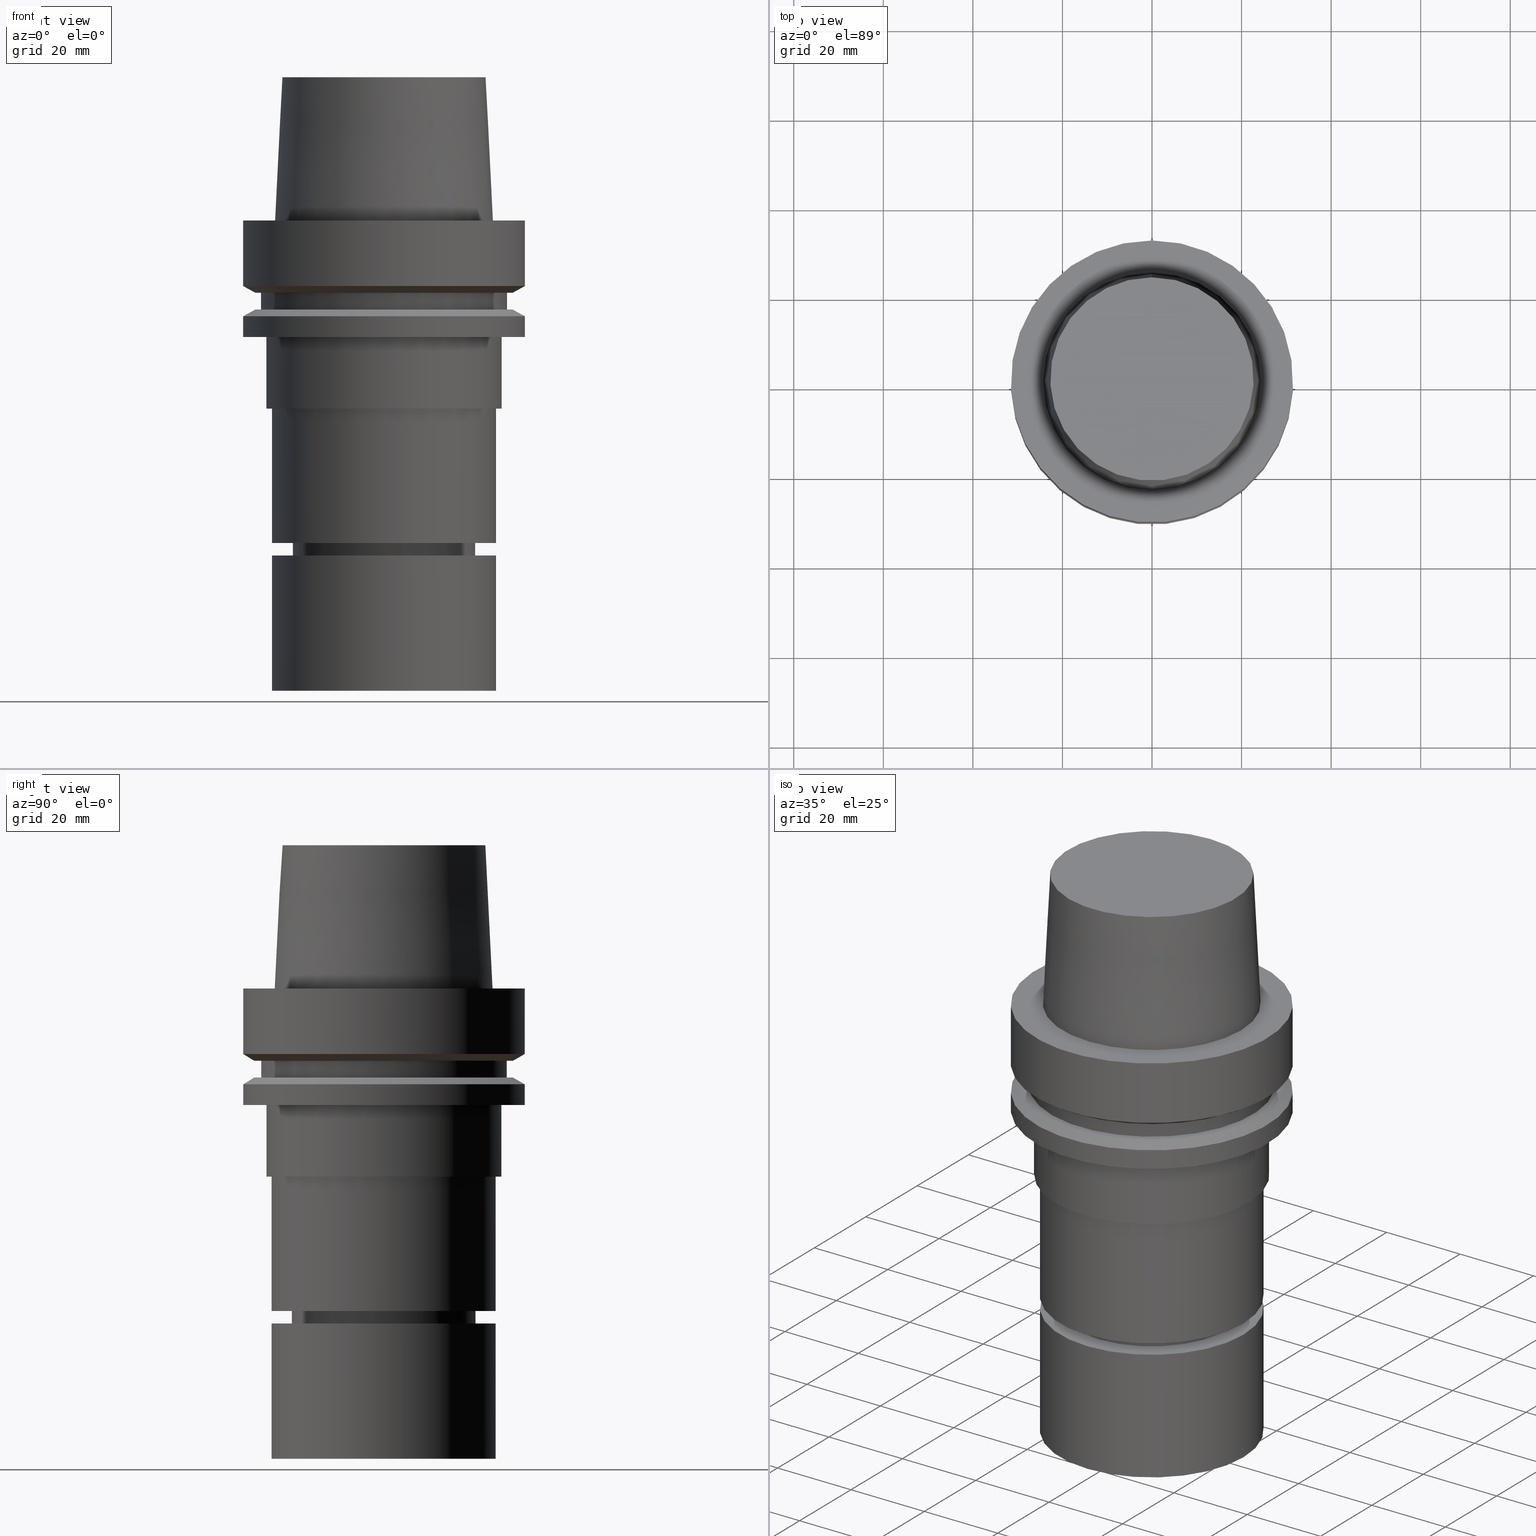
[diagram: canonical four-view strip — front | top / right | iso, engineering-drawing reading convention]
A machine part, canonical four-view strip (front | top / right | iso — engineering-drawing reading convention). The complete STEP part file that produces these views, byte-faithful:
ISO-10303-21;
HEADER;
FILE_DESCRIPTION((''),'1');
FILE_NAME('U:/Translate/02_3D_Field-HP\X2\FF71FF6FFF8CFF9F5916\X0\2013/02_Step_Field-HP\X2\FF71FF6FFF8CFF9F5916\X0\2013/HSK-A63-MEGAER32-105NL.stp','2016-06-22T00:36:56',(''),(''),'Spatial Interop R21 SP3','Kubotek KeyCreator 2011 V10.0.2 (22737)',' ');
FILE_SCHEMA(('automotive_design'));
ENDSEC;
DATA;
#1=MECHANICAL_DESIGN_GEOMETRIC_PRESENTATION_REPRESENTATION(' ',(#14,#15,#16,#17,#18,#19,#20,#21,#22,#23,#24,#25,#26,#27,#28,#29,#30,#31,#32,#33,#34,#35,#36,#37,#38,#39,#40,#41,#42,#43,#44,#45,#46,#47,#48,#49,#50,#51,#52,#53,#54,#55,#56,#57,#58,#59),#10);
#2=PRODUCT_DEFINITION_CONTEXT('',#60,'design');
#3=APPLICATION_PROTOCOL_DEFINITION('INTERNATIONAL STANDARD','automotive_design',1994,#60);
#4=PRODUCT_CATEGORY_RELATIONSHIP('NONE','NONE',#61,#62);
#5=SHAPE_DEFINITION_REPRESENTATION(#63,#64);
#6=PRODUCT_DEFINITION_CONTEXT('',#65,'design');
#7=APPLICATION_PROTOCOL_DEFINITION('INTERNATIONAL STANDARD','automotive_design',1994,#65);
#8=PRODUCT_CATEGORY_RELATIONSHIP('NONE','NONE',#66,#67);
#9=SHAPE_DEFINITION_REPRESENTATION(#68,#69);
#10= (GEOMETRIC_REPRESENTATION_CONTEXT(3)GLOBAL_UNCERTAINTY_ASSIGNED_CONTEXT((#72))GLOBAL_UNIT_ASSIGNED_CONTEXT((#74,#75,#76))REPRESENTATION_CONTEXT('NONE','WORKSPACE'));
#14=STYLED_ITEM('',(#78,#79),#80);
#15=STYLED_ITEM('',(#81),#82);
#16=STYLED_ITEM('',(#83),#84);
#17=STYLED_ITEM('',(#85),#86);
#18=STYLED_ITEM('',(#87,#88),#89);
#19=STYLED_ITEM('',(#90,#91),#92);
#20=STYLED_ITEM('',(#93,#94),#95);
#21=STYLED_ITEM('',(#96,#97),#98);
#22=STYLED_ITEM('',(#99),#100);
#23=STYLED_ITEM('',(#101),#102);
#24=STYLED_ITEM('',(#103),#104);
#25=STYLED_ITEM('',(#105),#106);
#26=STYLED_ITEM('',(#107),#108);
#27=STYLED_ITEM('',(#109),#110);
#28=STYLED_ITEM('',(#111,#112),#113);
#29=STYLED_ITEM('',(#114),#115);
#30=STYLED_ITEM('',(#116),#117);
#31=STYLED_ITEM('',(#118),#119);
#32=STYLED_ITEM('',(#120,#121),#122);
#33=STYLED_ITEM('',(#123),#124);
#34=STYLED_ITEM('',(#125,#126),#127);
#35=STYLED_ITEM('',(#128,#129),#130);
#36=STYLED_ITEM('',(#131),#132);
#37=STYLED_ITEM('',(#133,#134),#135);
#38=STYLED_ITEM('',(#136,#137),#138);
#39=STYLED_ITEM('',(#139,#140),#141);
#40=STYLED_ITEM('',(#142,#143),#144);
#41=STYLED_ITEM('',(#145,#146),#147);
#42=STYLED_ITEM('',(#148,#149),#150);
#43=STYLED_ITEM('',(#151,#152),#153);
#44=STYLED_ITEM('',(#154,#155),#156);
#45=STYLED_ITEM('',(#157,#158),#159);
#46=STYLED_ITEM('',(#160,#161),#162);
#47=STYLED_ITEM('',(#163),#164);
#48=STYLED_ITEM('',(#165,#166),#167);
#49=STYLED_ITEM('',(#168),#169);
#50=STYLED_ITEM('',(#170),#171);
#51=STYLED_ITEM('',(#172,#173),#174);
#52=STYLED_ITEM('',(#175,#176),#177);
#53=STYLED_ITEM('',(#178),#179);
#54=STYLED_ITEM('',(#180,#181),#182);
#55=STYLED_ITEM('',(#183),#184);
#56=STYLED_ITEM('',(#185),#186);
#57=STYLED_ITEM('',(#187),#188);
#58=STYLED_ITEM('',(#189,#190),#191);
#59=STYLED_ITEM('',(#192,#193),#194);
#60=APPLICATION_CONTEXT(' ');
#61=PRODUCT_CATEGORY('part','NONE');
#62=PRODUCT_RELATED_PRODUCT_CATEGORY('detail',' ',(#195));
#63=PRODUCT_DEFINITION_SHAPE('NONE','NONE',#196);
#64=ADVANCED_BREP_SHAPE_REPRESENTATION('Unnamed[1]',(#80,#197),#10);
#65=APPLICATION_CONTEXT(' ');
#66=PRODUCT_CATEGORY('part','NONE');
#67=PRODUCT_RELATED_PRODUCT_CATEGORY('detail',' ',(#198));
#68=PRODUCT_DEFINITION_SHAPE('NONE','NONE',#199);
#69=ADVANCED_BREP_SHAPE_REPRESENTATION('Unnamed[1]',(#89,#200),#10);
#72=UNCERTAINTY_MEASURE_WITH_UNIT(LENGTH_MEASURE(1.0E-006),#74,'','');
#74= (CONVERSION_BASED_UNIT('MILLIMETRE',#203)LENGTH_UNIT()NAMED_UNIT(#206));
#75= (NAMED_UNIT(#208)PLANE_ANGLE_UNIT()SI_UNIT($,.RADIAN.));
#76= (NAMED_UNIT(#208)SOLID_ANGLE_UNIT()SI_UNIT($,.STERADIAN.));
#78=PRESENTATION_STYLE_ASSIGNMENT((#214));
#79=PRESENTATION_STYLE_ASSIGNMENT((#215));
#80=MANIFOLD_SOLID_BREP('Unnamed[1]',#216);
#81=PRESENTATION_STYLE_ASSIGNMENT((#217));
#82=EDGE_CURVE('Unnamed[1]',#218,#218,#219,.T.);
#83=PRESENTATION_STYLE_ASSIGNMENT((#220));
#84=EDGE_CURVE('Unnamed[1]',#221,#221,#222,.T.);
#85=PRESENTATION_STYLE_ASSIGNMENT((#223));
#86=EDGE_CURVE('Unnamed[1]',#224,#224,#225,.T.);
#87=PRESENTATION_STYLE_ASSIGNMENT((#226));
#88=PRESENTATION_STYLE_ASSIGNMENT((#227));
#89=MANIFOLD_SOLID_BREP('Unnamed[1]',#228);
#90=PRESENTATION_STYLE_ASSIGNMENT((#229));
#91=PRESENTATION_STYLE_ASSIGNMENT((#230));
#92=ADVANCED_FACE('Unnamed[1]',(#231),#232,.T.);
#93=PRESENTATION_STYLE_ASSIGNMENT((#233));
#94=PRESENTATION_STYLE_ASSIGNMENT((#234));
#95=ADVANCED_FACE('Unnamed[1]',(#235),#236,.T.);
#96=PRESENTATION_STYLE_ASSIGNMENT((#237));
#97=PRESENTATION_STYLE_ASSIGNMENT((#238));
#98=ADVANCED_FACE('Unnamed[1]',(#239,#240),#241,.T.);
#99=PRESENTATION_STYLE_ASSIGNMENT((#242));
#100=EDGE_CURVE('Unnamed[1]',#243,#243,#244,.T.);
#101=PRESENTATION_STYLE_ASSIGNMENT((#245));
#102=EDGE_CURVE('Unnamed[1]',#246,#246,#247,.T.);
#103=PRESENTATION_STYLE_ASSIGNMENT((#248));
#104=EDGE_CURVE('Unnamed[1]',#249,#249,#250,.T.);
#105=PRESENTATION_STYLE_ASSIGNMENT((#251));
#106=EDGE_CURVE('Unnamed[1]',#252,#252,#253,.T.);
#107=PRESENTATION_STYLE_ASSIGNMENT((#254));
#108=EDGE_CURVE('Unnamed[1]',#255,#255,#256,.T.);
#109=PRESENTATION_STYLE_ASSIGNMENT((#257));
#110=EDGE_CURVE('Unnamed[1]',#258,#258,#259,.T.);
#111=PRESENTATION_STYLE_ASSIGNMENT((#260));
#112=PRESENTATION_STYLE_ASSIGNMENT((#261));
#113=ADVANCED_FACE('Unnamed[1]',(#262,#263),#264,.T.);
#114=PRESENTATION_STYLE_ASSIGNMENT((#265));
#115=EDGE_CURVE('Unnamed[1]',#266,#266,#267,.T.);
#116=PRESENTATION_STYLE_ASSIGNMENT((#268));
#117=EDGE_CURVE('Unnamed[1]',#269,#269,#270,.T.);
#118=PRESENTATION_STYLE_ASSIGNMENT((#271));
#119=EDGE_CURVE('Unnamed[1]',#272,#272,#273,.T.);
#120=PRESENTATION_STYLE_ASSIGNMENT((#274));
#121=PRESENTATION_STYLE_ASSIGNMENT((#275));
#122=ADVANCED_FACE('Unnamed[1]',(#276,#277),#278,.T.);
#123=PRESENTATION_STYLE_ASSIGNMENT((#279));
#124=EDGE_CURVE('Unnamed[1]',#280,#280,#281,.T.);
#125=PRESENTATION_STYLE_ASSIGNMENT((#282));
#126=PRESENTATION_STYLE_ASSIGNMENT((#283));
#127=ADVANCED_FACE('Unnamed[1]',(#284,#285),#286,.T.);
#128=PRESENTATION_STYLE_ASSIGNMENT((#287));
#129=PRESENTATION_STYLE_ASSIGNMENT((#288));
#130=ADVANCED_FACE('Unnamed[1]',(#289,#290),#291,.T.);
#131=PRESENTATION_STYLE_ASSIGNMENT((#292));
#132=EDGE_CURVE('Unnamed[1]',#293,#293,#294,.T.);
#133=PRESENTATION_STYLE_ASSIGNMENT((#295));
#134=PRESENTATION_STYLE_ASSIGNMENT((#296));
#135=ADVANCED_FACE('Unnamed[1]',(#297,#298),#299,.T.);
#136=PRESENTATION_STYLE_ASSIGNMENT((#300));
#137=PRESENTATION_STYLE_ASSIGNMENT((#301));
#138=ADVANCED_FACE('Unnamed[1]',(#302),#303,.T.);
#139=PRESENTATION_STYLE_ASSIGNMENT((#304));
#140=PRESENTATION_STYLE_ASSIGNMENT((#305));
#141=ADVANCED_FACE('Unnamed[1]',(#306,#307),#308,.T.);
#142=PRESENTATION_STYLE_ASSIGNMENT((#309));
#143=PRESENTATION_STYLE_ASSIGNMENT((#310));
#144=ADVANCED_FACE('Unnamed[1]',(#311,#312),#313,.T.);
#145=PRESENTATION_STYLE_ASSIGNMENT((#314));
#146=PRESENTATION_STYLE_ASSIGNMENT((#315));
#147=ADVANCED_FACE('Unnamed[1]',(#316,#317),#318,.T.);
#148=PRESENTATION_STYLE_ASSIGNMENT((#319));
#149=PRESENTATION_STYLE_ASSIGNMENT((#320));
#150=ADVANCED_FACE('Unnamed[1]',(#321,#322),#323,.T.);
#151=PRESENTATION_STYLE_ASSIGNMENT((#324));
#152=PRESENTATION_STYLE_ASSIGNMENT((#325));
#153=ADVANCED_FACE('Unnamed[1]',(#326,#327),#328,.T.);
#154=PRESENTATION_STYLE_ASSIGNMENT((#329));
#155=PRESENTATION_STYLE_ASSIGNMENT((#330));
#156=ADVANCED_FACE('Unnamed[1]',(#331,#332),#333,.T.);
#157=PRESENTATION_STYLE_ASSIGNMENT((#334));
#158=PRESENTATION_STYLE_ASSIGNMENT((#335));
#159=ADVANCED_FACE('Unnamed[1]',(#336,#337),#338,.T.);
#160=PRESENTATION_STYLE_ASSIGNMENT((#339));
#161=PRESENTATION_STYLE_ASSIGNMENT((#340));
#162=ADVANCED_FACE('Unnamed[1]',(#341),#342,.T.);
#163=PRESENTATION_STYLE_ASSIGNMENT((#343));
#164=EDGE_CURVE('Unnamed[1]',#344,#344,#345,.T.);
#165=PRESENTATION_STYLE_ASSIGNMENT((#346));
#166=PRESENTATION_STYLE_ASSIGNMENT((#347));
#167=ADVANCED_FACE('Unnamed[1]',(#348,#349),#350,.T.);
#168=PRESENTATION_STYLE_ASSIGNMENT((#351));
#169=EDGE_CURVE('Unnamed[1]',#352,#352,#353,.T.);
#170=PRESENTATION_STYLE_ASSIGNMENT((#354));
#171=EDGE_CURVE('Unnamed[1]',#355,#355,#356,.T.);
#172=PRESENTATION_STYLE_ASSIGNMENT((#357));
#173=PRESENTATION_STYLE_ASSIGNMENT((#358));
#174=ADVANCED_FACE('Unnamed[1]',(#359,#360),#361,.T.);
#175=PRESENTATION_STYLE_ASSIGNMENT((#362));
#176=PRESENTATION_STYLE_ASSIGNMENT((#363));
#177=ADVANCED_FACE('Unnamed[1]',(#364,#365),#366,.T.);
#178=PRESENTATION_STYLE_ASSIGNMENT((#367));
#179=EDGE_CURVE('Unnamed[1]',#368,#368,#369,.T.);
#180=PRESENTATION_STYLE_ASSIGNMENT((#370));
#181=PRESENTATION_STYLE_ASSIGNMENT((#371));
#182=ADVANCED_FACE('Unnamed[1]',(#372,#373),#374,.T.);
#183=PRESENTATION_STYLE_ASSIGNMENT((#375));
#184=EDGE_CURVE('Unnamed[1]',#376,#376,#377,.T.);
#185=PRESENTATION_STYLE_ASSIGNMENT((#378));
#186=EDGE_CURVE('Unnamed[1]',#379,#379,#380,.T.);
#187=PRESENTATION_STYLE_ASSIGNMENT((#381));
#188=EDGE_CURVE('Unnamed[1]',#382,#382,#383,.T.);
#189=PRESENTATION_STYLE_ASSIGNMENT((#384));
#190=PRESENTATION_STYLE_ASSIGNMENT((#385));
#191=ADVANCED_FACE('Unnamed[1]',(#386,#387),#388,.T.);
#192=PRESENTATION_STYLE_ASSIGNMENT((#389));
#193=PRESENTATION_STYLE_ASSIGNMENT((#390));
#194=ADVANCED_FACE('Unnamed[1]',(#391,#392),#393,.T.);
#195=PRODUCT('Unnamed[1]','Unnamed[1]','PART-Unnamed[1]-DESC',(#394));
#196=PRODUCT_DEFINITION('NONE','NONE',#395,#2);
#197=AXIS2_PLACEMENT_3D('',#396,#397,#398);
#198=PRODUCT('Unnamed[1]','Unnamed[1]','PART-Unnamed[1]-DESC',(#399));
#199=PRODUCT_DEFINITION('NONE','NONE',#400,#6);
#200=AXIS2_PLACEMENT_3D('',#401,#402,#403);
#203=LENGTH_MEASURE_WITH_UNIT(LENGTH_MEASURE(1.0),#404);
#206=DIMENSIONAL_EXPONENTS(1.0,0.0,0.0,0.0,0.0,0.0,0.0);
#208=DIMENSIONAL_EXPONENTS(0.0,0.0,0.0,0.0,0.0,0.0,0.0);
#214=SURFACE_STYLE_USAGE(.BOTH.,#405);
#215=CURVE_STYLE('',#406,POSITIVE_LENGTH_MEASURE(1000.0),#407);
#216=CLOSED_SHELL('',(#138,#141,#191,#159,#122,#98,#144,#135,#174,#167,#153,#147,#130,#150,#194,#182,#177,#113,#156,#162));
#217=CURVE_STYLE('',#408,POSITIVE_LENGTH_MEASURE(1000.0),#409);
#218=VERTEX_POINT('',#410);
#219=CIRCLE('',#411,18.8999999999997);
#220=CURVE_STYLE('',#412,POSITIVE_LENGTH_MEASURE(1000.0),#413);
#221=VERTEX_POINT('',#414);
#222=CIRCLE('',#415,20.0);
#223=CURVE_STYLE('',#416,POSITIVE_LENGTH_MEASURE(1000.0),#417);
#224=VERTEX_POINT('',#418);
#225=CIRCLE('',#419,25.0);
#226=SURFACE_STYLE_USAGE(.BOTH.,#420);
#227=CURVE_STYLE('',#421,POSITIVE_LENGTH_MEASURE(1000.0),#422);
#228=CLOSED_SHELL('',(#95,#92,#127));
#229=SURFACE_STYLE_USAGE(.BOTH.,#423);
#230=CURVE_STYLE('',#424,POSITIVE_LENGTH_MEASURE(1000.0),#425);
#231=FACE_OUTER_BOUND('',#426,.T.);
#232=PLANE('',#427);
#233=SURFACE_STYLE_USAGE(.BOTH.,#428);
#234=CURVE_STYLE('',#429,POSITIVE_LENGTH_MEASURE(1000.0),#430);
#235=FACE_OUTER_BOUND('',#431,.T.);
#236=PLANE('',#432);
#237=SURFACE_STYLE_USAGE(.BOTH.,#433);
#238=CURVE_STYLE('',#434,POSITIVE_LENGTH_MEASURE(1000.0),#435);
#239=FACE_OUTER_BOUND('',#436,.T.);
#240=FACE_BOUND('',#437,.T.);
#241=PLANE('',#438);
#242=CURVE_STYLE('',#439,POSITIVE_LENGTH_MEASURE(1000.0),#440);
#243=VERTEX_POINT('',#441);
#244=CIRCLE('',#442,22.715);
#245=CURVE_STYLE('',#443,POSITIVE_LENGTH_MEASURE(1000.0),#444);
#246=VERTEX_POINT('',#445);
#247=CIRCLE('',#446,27.4999999999989);
#248=CURVE_STYLE('',#447,POSITIVE_LENGTH_MEASURE(1000.0),#448);
#249=VERTEX_POINT('',#449);
#250=CIRCLE('',#450,26.3);
#251=CURVE_STYLE('',#451,POSITIVE_LENGTH_MEASURE(1000.0),#452);
#252=VERTEX_POINT('',#453);
#253=CIRCLE('',#454,31.5000000000001);
#254=CURVE_STYLE('',#455,POSITIVE_LENGTH_MEASURE(1000.0),#456);
#255=VERTEX_POINT('',#457);
#256=CIRCLE('',#458,28.8975952641919);
#257=CURVE_STYLE('',#459,POSITIVE_LENGTH_MEASURE(1000.0),#460);
#258=VERTEX_POINT('',#461);
#259=CIRCLE('',#462,27.5);
#260=SURFACE_STYLE_USAGE(.BOTH.,#463);
#261=CURVE_STYLE('',#464,POSITIVE_LENGTH_MEASURE(1000.0),#465);
#262=FACE_BOUND('',#466,.T.);
#263=FACE_OUTER_BOUND('',#467,.T.);
#264=PLANE('',#468);
#265=CURVE_STYLE('',#469,POSITIVE_LENGTH_MEASURE(1000.0),#470);
#266=VERTEX_POINT('',#471);
#267=CIRCLE('',#472,24.315);
#268=CURVE_STYLE('',#473,POSITIVE_LENGTH_MEASURE(1000.0),#474);
#269=VERTEX_POINT('',#475);
#270=CIRCLE('',#476,31.4999999999998);
#271=CURVE_STYLE('',#477,POSITIVE_LENGTH_MEASURE(1000.0),#478);
#272=VERTEX_POINT('',#479);
#273=CIRCLE('',#480,28.8975952641919);
#274=SURFACE_STYLE_USAGE(.BOTH.,#481);
#275=CURVE_STYLE('',#482,POSITIVE_LENGTH_MEASURE(1000.0),#483);
#276=FACE_BOUND('',#484,.T.);
#277=FACE_BOUND('',#485,.T.);
#278=CYLINDRICAL_SURFACE('',#486,20.4999999999961);
#279=CURVE_STYLE('',#487,POSITIVE_LENGTH_MEASURE(1000.0),#488);
#280=VERTEX_POINT('',#489);
#281=CIRCLE('',#490,25.0);
#282=SURFACE_STYLE_USAGE(.BOTH.,#491);
#283=CURVE_STYLE('',#492,POSITIVE_LENGTH_MEASURE(1000.0),#493);
#284=FACE_BOUND('',#494,.T.);
#285=FACE_BOUND('',#495,.T.);
#286=CYLINDRICAL_SURFACE('',#496,25.0);
#287=SURFACE_STYLE_USAGE(.BOTH.,#497);
#288=CURVE_STYLE('',#498,POSITIVE_LENGTH_MEASURE(1000.0),#499);
#289=FACE_BOUND('',#500,.T.);
#290=FACE_OUTER_BOUND('',#501,.T.);
#291=PLANE('',#502);
#292=CURVE_STYLE('',#503,POSITIVE_LENGTH_MEASURE(1000.0),#504);
#293=VERTEX_POINT('',#505);
#294=CIRCLE('',#506,25.0);
#295=SURFACE_STYLE_USAGE(.BOTH.,#507);
#296=CURVE_STYLE('',#508,POSITIVE_LENGTH_MEASURE(1000.0),#509);
#297=FACE_OUTER_BOUND('',#510,.T.);
#298=FACE_BOUND('',#511,.T.);
#299=PLANE('',#512);
#300=SURFACE_STYLE_USAGE(.BOTH.,#513);
#301=CURVE_STYLE('',#514,POSITIVE_LENGTH_MEASURE(1000.0),#515);
#302=FACE_OUTER_BOUND('',#516,.T.);
#303=PLANE('',#517);
#304=SURFACE_STYLE_USAGE(.BOTH.,#518);
#305=CURVE_STYLE('',#519,POSITIVE_LENGTH_MEASURE(1000.0),#520);
#306=FACE_BOUND('',#521,.T.);
#307=FACE_BOUND('',#522,.T.);
#308=CONICAL_SURFACE('',#523,19.4499999999999,0.523598775598216);
#309=SURFACE_STYLE_USAGE(.BOTH.,#524);
#310=CURVE_STYLE('',#525,POSITIVE_LENGTH_MEASURE(1000.0),#526);
#311=FACE_BOUND('',#527,.T.);
#312=FACE_BOUND('',#528,.T.);
#313=CYLINDRICAL_SURFACE('',#529,25.0);
#314=SURFACE_STYLE_USAGE(.BOTH.,#530);
#315=CURVE_STYLE('',#531,POSITIVE_LENGTH_MEASURE(1000.0),#532);
#316=FACE_BOUND('',#533,.T.);
#317=FACE_BOUND('',#534,.T.);
#318=CONICAL_SURFACE('',#535,30.1987976320959,1.04719755119657);
#319=SURFACE_STYLE_USAGE(.BOTH.,#536);
#320=CURVE_STYLE('',#537,POSITIVE_LENGTH_MEASURE(1000.0),#538);
#321=FACE_BOUND('',#539,.T.);
#322=FACE_BOUND('',#540,.T.);
#323=CYLINDRICAL_SURFACE('',#541,27.4999999999994);
#324=SURFACE_STYLE_USAGE(.BOTH.,#542);
#325=CURVE_STYLE('',#543,POSITIVE_LENGTH_MEASURE(1000.0),#544);
#326=FACE_BOUND('',#545,.T.);
#327=FACE_BOUND('',#546,.T.);
#328=CYLINDRICAL_SURFACE('',#547,31.4999999999999);
#329=SURFACE_STYLE_USAGE(.BOTH.,#548);
#330=CURVE_STYLE('',#549,POSITIVE_LENGTH_MEASURE(1000.0),#550);
#331=FACE_BOUND('',#551,.T.);
#332=FACE_BOUND('',#552,.T.);
#333=CONICAL_SURFACE('',#553,23.515,0.0499583957219433);
#334=SURFACE_STYLE_USAGE(.BOTH.,#554);
#335=CURVE_STYLE('',#555,POSITIVE_LENGTH_MEASURE(1000.0),#556);
#336=FACE_BOUND('',#557,.T.);
#337=FACE_BOUND('',#558,.T.);
#338=CONICAL_SURFACE('',#559,20.2500000000006,0.766162649696511);
#339=SURFACE_STYLE_USAGE(.BOTH.,#560);
#340=CURVE_STYLE('',#561,POSITIVE_LENGTH_MEASURE(1000.0),#562);
#341=FACE_OUTER_BOUND('',#563,.T.);
#342=PLANE('',#564);
#343=CURVE_STYLE('',#565,POSITIVE_LENGTH_MEASURE(1000.0),#566);
#344=VERTEX_POINT('',#567);
#345=CIRCLE('',#568,31.5);
#346=SURFACE_STYLE_USAGE(.BOTH.,#569);
#347=CURVE_STYLE('',#570,POSITIVE_LENGTH_MEASURE(1000.0),#571);
#348=FACE_OUTER_BOUND('',#572,.T.);
#349=FACE_BOUND('',#573,.T.);
#350=PLANE('',#574);
#351=CURVE_STYLE('',#575,POSITIVE_LENGTH_MEASURE(1000.0),#576);
#352=VERTEX_POINT('',#577);
#353=CIRCLE('',#578,26.3);
#354=CURVE_STYLE('',#579,POSITIVE_LENGTH_MEASURE(1000.0),#580);
#355=VERTEX_POINT('',#581);
#356=CIRCLE('',#582,20.4999999999911);
#357=SURFACE_STYLE_USAGE(.BOTH.,#583);
#358=CURVE_STYLE('',#584,POSITIVE_LENGTH_MEASURE(1000.0),#585);
#359=FACE_BOUND('',#586,.T.);
#360=FACE_BOUND('',#587,.T.);
#361=CYLINDRICAL_SURFACE('',#588,26.3);
#362=SURFACE_STYLE_USAGE(.BOTH.,#589);
#363=CURVE_STYLE('',#590,POSITIVE_LENGTH_MEASURE(1000.0),#591);
#364=FACE_BOUND('',#592,.T.);
#365=FACE_BOUND('',#593,.T.);
#366=CYLINDRICAL_SURFACE('',#594,31.5);
#367=CURVE_STYLE('',#595,POSITIVE_LENGTH_MEASURE(1000.0),#596);
#368=VERTEX_POINT('',#597);
#369=CIRCLE('',#598,20.5000000000012);
#370=SURFACE_STYLE_USAGE(.BOTH.,#599);
#371=CURVE_STYLE('',#600,POSITIVE_LENGTH_MEASURE(1000.0),#601);
#372=FACE_BOUND('',#602,.T.);
#373=FACE_BOUND('',#603,.T.);
#374=CONICAL_SURFACE('',#604,30.1987976320959,1.04719755119657);
#375=CURVE_STYLE('',#605,POSITIVE_LENGTH_MEASURE(1000.0),#606);
#376=VERTEX_POINT('',#607);
#377=CIRCLE('',#608,25.0);
#378=CURVE_STYLE('',#609,POSITIVE_LENGTH_MEASURE(1000.0),#610);
#379=VERTEX_POINT('',#611);
#380=CIRCLE('',#612,20.0000000000001);
#381=CURVE_STYLE('',#613,POSITIVE_LENGTH_MEASURE(1000.0),#614);
#382=VERTEX_POINT('',#615);
#383=CIRCLE('',#616,31.5);
#384=SURFACE_STYLE_USAGE(.BOTH.,#617);
#385=CURVE_STYLE('',#618,POSITIVE_LENGTH_MEASURE(1000.0),#619);
#386=FACE_BOUND('',#620,.T.);
#387=FACE_BOUND('',#621,.T.);
#388=CYLINDRICAL_SURFACE('',#622,20.0);
#389=SURFACE_STYLE_USAGE(.BOTH.,#623);
#390=CURVE_STYLE('',#624,POSITIVE_LENGTH_MEASURE(1000.0),#625);
#391=FACE_OUTER_BOUND('',#626,.T.);
#392=FACE_BOUND('',#627,.T.);
#393=PLANE('',#628);
#394=PRODUCT_CONTEXT('',#60,'mechanical');
#395=PRODUCT_DEFINITION_FORMATION_WITH_SPECIFIED_SOURCE(' ','NONE',#195,.NOT_KNOWN.);
#396=CARTESIAN_POINT('',(0.0,0.0,0.0));
#397=DIRECTION('',(0.0,0.0,1.0));
#398=DIRECTION('',(1.0,0.0,0.0));
#399=PRODUCT_CONTEXT('',#65,'mechanical');
#400=PRODUCT_DEFINITION_FORMATION_WITH_SPECIFIED_SOURCE(' ','NONE',#198,.NOT_KNOWN.);
#401=CARTESIAN_POINT('',(0.0,0.0,0.0));
#402=DIRECTION('',(0.0,0.0,1.0));
#403=DIRECTION('',(1.0,0.0,0.0));
#404= (NAMED_UNIT(#206)LENGTH_UNIT()SI_UNIT(.MILLI.,.METRE.));
#405=SURFACE_SIDE_STYLE('',(#630));
#406=DRAUGHTING_PRE_DEFINED_CURVE_FONT('continuous');
#407=COLOUR_RGB('',0.0,1.0,0.0);
#408=DRAUGHTING_PRE_DEFINED_CURVE_FONT('continuous');
#409=COLOUR_RGB('',0.0,1.0,0.0);
#410=CARTESIAN_POINT('',(5.75583995599257E-015,18.8999999999997,-94.0000000000001));
#411=AXIS2_PLACEMENT_3D('',#631,#632,#633);
#412=DRAUGHTING_PRE_DEFINED_CURVE_FONT('continuous');
#413=COLOUR_RGB('',0.0,1.0,0.0);
#414=CARTESIAN_POINT('',(4.82088933817907E-015,20.0,-78.73109767707));
#415=AXIS2_PLACEMENT_3D('',#634,#635,#636);
#416=DRAUGHTING_PRE_DEFINED_CURVE_FONT('continuous');
#417=COLOUR_RGB('',0.0,1.0,0.0);
#418=CARTESIAN_POINT('',(6.4293956955236E-015,25.0,-105.0));
#419=AXIS2_PLACEMENT_3D('',#637,#638,#639);
#420=SURFACE_SIDE_STYLE('',(#640));
#421=DRAUGHTING_PRE_DEFINED_CURVE_FONT('continuous');
#422=COLOUR_RGB('',0.0,1.0,0.0);
#423=SURFACE_SIDE_STYLE('',(#641));
#424=DRAUGHTING_PRE_DEFINED_CURVE_FONT('continuous');
#425=COLOUR_RGB('',0.0,1.0,0.0);
#426=EDGE_LOOP('',(#642));
#427=AXIS2_PLACEMENT_3D('',#643,#644,#645);
#428=SURFACE_SIDE_STYLE('',(#646));
#429=DRAUGHTING_PRE_DEFINED_CURVE_FONT('continuous');
#430=COLOUR_RGB('',0.0,1.0,0.0);
#431=EDGE_LOOP('',(#647));
#432=AXIS2_PLACEMENT_3D('',#648,#649,#650);
#433=SURFACE_SIDE_STYLE('',(#651));
#434=DRAUGHTING_PRE_DEFINED_CURVE_FONT('continuous');
#435=COLOUR_RGB('',0.0,1.0,0.0);
#436=EDGE_LOOP('',(#652));
#437=EDGE_LOOP('',(#653));
#438=AXIS2_PLACEMENT_3D('',#654,#655,#656);
#439=DRAUGHTING_PRE_DEFINED_CURVE_FONT('continuous');
#440=COLOUR_RGB('',0.0,1.0,0.0);
#441=CARTESIAN_POINT('',(-1.95943487863576E-015,22.715,32.0));
#442=AXIS2_PLACEMENT_3D('',#657,#658,#659);
#443=DRAUGHTING_PRE_DEFINED_CURVE_FONT('continuous');
#444=COLOUR_RGB('',0.0,1.0,0.0);
#445=CARTESIAN_POINT('',(1.21699275665276E-015,27.4999999999989,-19.8750000000013));
#446=AXIS2_PLACEMENT_3D('',#660,#661,#662);
#447=DRAUGHTING_PRE_DEFINED_CURVE_FONT('continuous');
#448=COLOUR_RGB('',0.0,1.0,0.0);
#449=CARTESIAN_POINT('',(1.59204083889154E-015,26.3,-25.9999999999997));
#450=AXIS2_PLACEMENT_3D('',#663,#664,#665);
#451=DRAUGHTING_PRE_DEFINED_CURVE_FONT('continuous');
#452=COLOUR_RGB('',0.0,1.0,0.0);
#453=CARTESIAN_POINT('',(-3.88267476788467E-031,31.5000000000001,3.85763741731417E-015));
#454=AXIS2_PLACEMENT_3D('',#666,#667,#668);
#455=DRAUGHTING_PRE_DEFINED_CURVE_FONT('continuous');
#456=COLOUR_RGB('',0.0,1.0,0.0);
#457=CARTESIAN_POINT('',(1.21699275665268E-015,28.8975952641919,-19.875));
#458=AXIS2_PLACEMENT_3D('',#669,#670,#671);
#459=DRAUGHTING_PRE_DEFINED_CURVE_FONT('continuous');
#460=COLOUR_RGB('',0.0,1.0,0.0);
#461=CARTESIAN_POINT('',(9.87371481812537E-016,27.5,-16.1249999999997));
#462=AXIS2_PLACEMENT_3D('',#672,#673,#674);
#463=SURFACE_SIDE_STYLE('',(#675));
#464=DRAUGHTING_PRE_DEFINED_CURVE_FONT('continuous');
#465=COLOUR_RGB('',0.0,1.0,0.0);
#466=EDGE_LOOP('',(#676));
#467=EDGE_LOOP('',(#677));
#468=AXIS2_PLACEMENT_3D('',#678,#679,#680);
#469=DRAUGHTING_PRE_DEFINED_CURVE_FONT('continuous');
#470=COLOUR_RGB('',0.0,1.0,0.0);
#471=CARTESIAN_POINT('',(-2.99705514225764E-031,24.315,2.97772869212679E-015));
#472=AXIS2_PLACEMENT_3D('',#681,#682,#683);
#473=DRAUGHTING_PRE_DEFINED_CURVE_FONT('continuous');
#474=COLOUR_RGB('',0.0,1.0,0.0);
#475=CARTESIAN_POINT('',(1.59204083889155E-015,31.4999999999998,-25.9999999999999));
#476=AXIS2_PLACEMENT_3D('',#684,#685,#686);
#477=DRAUGHTING_PRE_DEFINED_CURVE_FONT('continuous');
#478=COLOUR_RGB('',0.0,1.0,0.0);
#479=CARTESIAN_POINT('',(9.87371481812551E-016,28.8975952641919,-16.125));
#480=AXIS2_PLACEMENT_3D('',#687,#688,#689);
#481=SURFACE_SIDE_STYLE('',(#690));
#482=DRAUGHTING_PRE_DEFINED_CURVE_FONT('continuous');
#483=COLOUR_RGB('',0.0,1.0,0.0);
#484=EDGE_LOOP('',(#691));
#485=EDGE_LOOP('',(#692));
#486=AXIS2_PLACEMENT_3D('',#693,#694,#695);
#487=DRAUGHTING_PRE_DEFINED_CURVE_FONT('continuous');
#488=COLOUR_RGB('',0.0,1.0,0.0);
#489=CARTESIAN_POINT('',(2.57175827820944E-015,25.0,-42.0));
#490=AXIS2_PLACEMENT_3D('',#696,#697,#698);
#491=SURFACE_SIDE_STYLE('',(#699));
#492=DRAUGHTING_PRE_DEFINED_CURVE_FONT('continuous');
#493=COLOUR_RGB('',0.0,1.0,0.0);
#494=EDGE_LOOP('',(#700));
#495=EDGE_LOOP('',(#701));
#496=AXIS2_PLACEMENT_3D('',#702,#703,#704);
#497=SURFACE_SIDE_STYLE('',(#705));
#498=DRAUGHTING_PRE_DEFINED_CURVE_FONT('continuous');
#499=COLOUR_RGB('',0.0,1.0,0.0);
#500=EDGE_LOOP('',(#706));
#501=EDGE_LOOP('',(#707));
#502=AXIS2_PLACEMENT_3D('',#708,#709,#710);
#503=DRAUGHTING_PRE_DEFINED_CURVE_FONT('continuous');
#504=COLOUR_RGB('',0.0,1.0,0.0);
#505=CARTESIAN_POINT('',(4.5801790288111E-015,25.0,-74.8));
#506=AXIS2_PLACEMENT_3D('',#711,#712,#713);
#507=SURFACE_SIDE_STYLE('',(#714));
#508=DRAUGHTING_PRE_DEFINED_CURVE_FONT('continuous');
#509=COLOUR_RGB('',0.0,1.0,0.0);
#510=EDGE_LOOP('',(#715));
#511=EDGE_LOOP('',(#716));
#512=AXIS2_PLACEMENT_3D('',#717,#718,#719);
#513=SURFACE_SIDE_STYLE('',(#720));
#514=DRAUGHTING_PRE_DEFINED_CURVE_FONT('continuous');
#515=COLOUR_RGB('',0.0,1.0,0.0);
#516=EDGE_LOOP('',(#721));
#517=AXIS2_PLACEMENT_3D('',#722,#723,#724);
#518=SURFACE_SIDE_STYLE('',(#725));
#519=DRAUGHTING_PRE_DEFINED_CURVE_FONT('continuous');
#520=COLOUR_RGB('',0.0,1.0,0.0);
#521=EDGE_LOOP('',(#726));
#522=EDGE_LOOP('',(#727));
#523=AXIS2_PLACEMENT_3D('',#728,#729,#730);
#524=SURFACE_SIDE_STYLE('',(#731));
#525=DRAUGHTING_PRE_DEFINED_CURVE_FONT('continuous');
#526=COLOUR_RGB('',0.0,1.0,0.0);
#527=EDGE_LOOP('',(#732));
#528=EDGE_LOOP('',(#733));
#529=AXIS2_PLACEMENT_3D('',#734,#735,#736);
#530=SURFACE_SIDE_STYLE('',(#737));
#531=DRAUGHTING_PRE_DEFINED_CURVE_FONT('continuous');
#532=COLOUR_RGB('',0.0,1.0,0.0);
#533=EDGE_LOOP('',(#738));
#534=EDGE_LOOP('',(#739));
#535=AXIS2_PLACEMENT_3D('',#740,#741,#742);
#536=SURFACE_SIDE_STYLE('',(#743));
#537=DRAUGHTING_PRE_DEFINED_CURVE_FONT('continuous');
#538=COLOUR_RGB('',0.0,1.0,0.0);
#539=EDGE_LOOP('',(#744));
#540=EDGE_LOOP('',(#745));
#541=AXIS2_PLACEMENT_3D('',#746,#747,#748);
#542=SURFACE_SIDE_STYLE('',(#749));
#543=DRAUGHTING_PRE_DEFINED_CURVE_FONT('continuous');
#544=COLOUR_RGB('',0.0,1.0,0.0);
#545=EDGE_LOOP('',(#750));
#546=EDGE_LOOP('',(#751));
#547=AXIS2_PLACEMENT_3D('',#752,#753,#754);
#548=SURFACE_SIDE_STYLE('',(#755));
#549=DRAUGHTING_PRE_DEFINED_CURVE_FONT('continuous');
#550=COLOUR_RGB('',0.0,1.0,0.0);
#551=EDGE_LOOP('',(#756));
#552=EDGE_LOOP('',(#757));
#553=AXIS2_PLACEMENT_3D('',#758,#759,#760);
#554=SURFACE_SIDE_STYLE('',(#761));
#555=DRAUGHTING_PRE_DEFINED_CURVE_FONT('continuous');
#556=COLOUR_RGB('',0.0,1.0,0.0);
#557=EDGE_LOOP('',(#762));
#558=EDGE_LOOP('',(#763));
#559=AXIS2_PLACEMENT_3D('',#764,#765,#766);
#560=SURFACE_SIDE_STYLE('',(#767));
#561=DRAUGHTING_PRE_DEFINED_CURVE_FONT('continuous');
#562=COLOUR_RGB('',0.0,1.0,0.0);
#563=EDGE_LOOP('',(#768));
#564=AXIS2_PLACEMENT_3D('',#769,#770,#771);
#565=DRAUGHTING_PRE_DEFINED_CURVE_FONT('continuous');
#566=COLOUR_RGB('',0.0,1.0,0.0);
#567=CARTESIAN_POINT('',(8.95369947681261E-016,31.5,-14.6225009252407));
#568=AXIS2_PLACEMENT_3D('',#772,#773,#774);
#569=SURFACE_SIDE_STYLE('',(#775));
#570=DRAUGHTING_PRE_DEFINED_CURVE_FONT('continuous');
#571=COLOUR_RGB('',0.0,1.0,0.0);
#572=EDGE_LOOP('',(#776));
#573=EDGE_LOOP('',(#777));
#574=AXIS2_PLACEMENT_3D('',#778,#779,#780);
#575=DRAUGHTING_PRE_DEFINED_CURVE_FONT('continuous');
#576=COLOUR_RGB('',0.0,1.0,0.0);
#577=CARTESIAN_POINT('',(2.57175827820944E-015,26.3,-42.0));
#578=AXIS2_PLACEMENT_3D('',#781,#782,#783);
#579=DRAUGHTING_PRE_DEFINED_CURVE_FONT('continuous');
#580=COLOUR_RGB('',0.0,1.0,0.0);
#581=CARTESIAN_POINT('',(4.4087381252738E-015,20.4999999999911,-72.0001575694042));
#582=AXIS2_PLACEMENT_3D('',#784,#785,#786);
#583=SURFACE_SIDE_STYLE('',(#787));
#584=DRAUGHTING_PRE_DEFINED_CURVE_FONT('continuous');
#585=COLOUR_RGB('',0.0,1.0,0.0);
#586=EDGE_LOOP('',(#788));
#587=EDGE_LOOP('',(#789));
#588=AXIS2_PLACEMENT_3D('',#790,#791,#792);
#589=SURFACE_SIDE_STYLE('',(#793));
#590=DRAUGHTING_PRE_DEFINED_CURVE_FONT('continuous');
#591=COLOUR_RGB('',0.0,1.0,0.0);
#592=EDGE_LOOP('',(#794));
#593=EDGE_LOOP('',(#795));
#594=AXIS2_PLACEMENT_3D('',#796,#797,#798);
#595=DRAUGHTING_PRE_DEFINED_CURVE_FONT('continuous');
#596=COLOUR_RGB('',0.0,1.0,0.0);
#597=CARTESIAN_POINT('',(4.78907208101742E-015,20.5000000000012,-78.211482434801));
#598=AXIS2_PLACEMENT_3D('',#799,#800,#801);
#599=SURFACE_SIDE_STYLE('',(#802));
#600=DRAUGHTING_PRE_DEFINED_CURVE_FONT('continuous');
#601=COLOUR_RGB('',0.0,1.0,0.0);
#602=EDGE_LOOP('',(#803));
#603=EDGE_LOOP('',(#804));
#604=AXIS2_PLACEMENT_3D('',#805,#806,#807);
#605=DRAUGHTING_PRE_DEFINED_CURVE_FONT('continuous');
#606=COLOUR_RGB('',0.0,1.0,0.0);
#607=CARTESIAN_POINT('',(4.40873812527377E-015,25.0,-72.0001575694037));
#608=AXIS2_PLACEMENT_3D('',#808,#809,#810);
#609=DRAUGHTING_PRE_DEFINED_CURVE_FONT('continuous');
#610=COLOUR_RGB('',0.0,1.0,0.0);
#611=CARTESIAN_POINT('',(5.63917667973277E-015,20.0000000000001,-92.0947441116734));
#612=AXIS2_PLACEMENT_3D('',#811,#812,#813);
#613=DRAUGHTING_PRE_DEFINED_CURVE_FONT('continuous');
#614=COLOUR_RGB('',0.0,1.0,0.0);
#615=CARTESIAN_POINT('',(1.30899429078397E-015,31.5,-21.3774990747592));
#616=AXIS2_PLACEMENT_3D('',#814,#815,#816);
#617=SURFACE_SIDE_STYLE('',(#817));
#618=DRAUGHTING_PRE_DEFINED_CURVE_FONT('continuous');
#619=COLOUR_RGB('',0.0,1.0,0.0);
#620=EDGE_LOOP('',(#818));
#621=EDGE_LOOP('',(#819));
#622=AXIS2_PLACEMENT_3D('',#820,#821,#822);
#623=SURFACE_SIDE_STYLE('',(#823));
#624=DRAUGHTING_PRE_DEFINED_CURVE_FONT('continuous');
#625=COLOUR_RGB('',0.0,1.0,0.0);
#626=EDGE_LOOP('',(#824));
#627=EDGE_LOOP('',(#825));
#628=AXIS2_PLACEMENT_3D('',#826,#827,#828);
#630=SURFACE_STYLE_FILL_AREA(#829);
#631=CARTESIAN_POINT('',(5.75583995599257E-015,1.15116799119851E-014,-94.0000000000001));
#632=DIRECTION('',(-6.12323399573677E-017,-1.22464679914735E-016,1.0));
#633=DIRECTION('',(-1.23259516440783E-032,1.0,1.22464679914735E-016));
#634=CARTESIAN_POINT('',(4.82088933817907E-015,9.64177867635814E-015,-78.73109767707));
#635=DIRECTION('',(-6.12323399573677E-017,-1.22464679914735E-016,1.0));
#636=DIRECTION('',(-1.23259516440783E-032,1.0,1.22464679914735E-016));
#637=CARTESIAN_POINT('',(6.4293956955236E-015,1.28587913910472E-014,-105.0));
#638=DIRECTION('',(6.12323399573677E-017,1.22464679914735E-016,-1.0));
#639=DIRECTION('',(-1.23259516440783E-032,1.0,1.22464679914735E-016));
#640=SURFACE_STYLE_FILL_AREA(#830);
#641=SURFACE_STYLE_FILL_AREA(#831);
#642=ORIENTED_EDGE('',*,*,#132,.F.);
#643=CARTESIAN_POINT('',(4.5801790288111E-015,12.5,-74.8));
#644=DIRECTION('',(-6.12323399573677E-017,-1.22464679914735E-016,1.0));
#645=DIRECTION('',(1.23259516440783E-032,-1.0,-1.22464679914735E-016));
#646=SURFACE_STYLE_FILL_AREA(#832);
#647=ORIENTED_EDGE('',*,*,#86,.T.);
#648=CARTESIAN_POINT('',(6.4293956955236E-015,12.5,-105.0));
#649=DIRECTION('',(6.12323399573677E-017,1.22464679914735E-016,-1.0));
#650=DIRECTION('',(-1.23259516440783E-032,1.0,1.22464679914735E-016));
#651=SURFACE_STYLE_FILL_AREA(#833);
#652=ORIENTED_EDGE('',*,*,#184,.F.);
#653=ORIENTED_EDGE('',*,*,#171,.T.);
#654=CARTESIAN_POINT('',(4.40873812527378E-015,22.7499999999956,-72.0001575694039));
#655=DIRECTION('',(6.12323399573677E-017,1.10651334686823E-013,-1.0));
#656=DIRECTION('',(6.78026729501076E-030,-1.0,-1.10651334686823E-013));
#657=CARTESIAN_POINT('',(-1.95943487863576E-015,-3.91886975727153E-015,32.0));
#658=DIRECTION('',(-6.12323399573676E-017,-1.22464679914735E-016,1.0));
#659=DIRECTION('',(-1.23259516440783E-032,1.0,1.22464679914735E-016));
#660=CARTESIAN_POINT('',(1.21699275665276E-015,2.43398551330552E-015,-19.8750000000013));
#661=DIRECTION('',(-6.12323399573677E-017,-1.22464679914735E-016,1.0));
#662=DIRECTION('',(-1.23259516440783E-032,1.0,1.22464679914735E-016));
#663=CARTESIAN_POINT('',(1.59204083889154E-015,3.18408167778308E-015,-25.9999999999997));
#664=DIRECTION('',(-6.12323399573677E-017,-1.22464679914735E-016,1.0));
#665=DIRECTION('',(-1.23259516440783E-032,1.0,1.22464679914735E-016));
#666=CARTESIAN_POINT('',(0.0,0.0,0.0));
#667=DIRECTION('',(-6.12323399573677E-017,-1.22464679914735E-016,1.0));
#668=DIRECTION('',(-1.23259516440783E-032,1.0,1.22464679914735E-016));
#669=CARTESIAN_POINT('',(1.21699275665268E-015,2.43398551330536E-015,-19.875));
#670=DIRECTION('',(-6.12323399573677E-017,-1.22464679914735E-016,1.0));
#671=DIRECTION('',(-1.23259516440783E-032,1.0,1.22464679914735E-016));
#672=CARTESIAN_POINT('',(9.87371481812538E-016,1.97474296362508E-015,-16.1249999999997));
#673=DIRECTION('',(-6.12323399573677E-017,-1.22464679914735E-016,1.0));
#674=DIRECTION('',(-1.23259516440783E-032,1.0,1.22464679914735E-016));
#675=SURFACE_STYLE_FILL_AREA(#834);
#676=ORIENTED_EDGE('',*,*,#115,.F.);
#677=ORIENTED_EDGE('',*,*,#106,.T.);
#678=CARTESIAN_POINT('',(-3.43986495507116E-031,27.9075,3.41768305472048E-015));
#679=DIRECTION('',(-6.12323399573677E-017,-1.22464679914735E-016,1.0));
#680=DIRECTION('',(-1.23259516440783E-032,1.0,1.22464679914735E-016));
#681=CARTESIAN_POINT('',(0.0,0.0,0.0));
#682=DIRECTION('',(-6.12323399573677E-017,-1.22464679914735E-016,1.0));
#683=DIRECTION('',(-1.23259516440783E-032,1.0,1.22464679914735E-016));
#684=CARTESIAN_POINT('',(1.59204083889155E-015,3.1840816777831E-015,-25.9999999999999));
#685=DIRECTION('',(-6.12323399573676E-017,-1.22464679914735E-016,1.0));
#686=DIRECTION('',(-1.23259516440783E-032,1.0,1.22464679914735E-016));
#687=CARTESIAN_POINT('',(9.87371481812552E-016,1.9747429636251E-015,-16.125));
#688=DIRECTION('',(-6.12323399573677E-017,-1.22464679914735E-016,1.0));
#689=DIRECTION('',(-1.23259516440783E-032,1.0,1.22464679914735E-016));
#690=SURFACE_STYLE_FILL_AREA(#835);
#691=ORIENTED_EDGE('',*,*,#171,.F.);
#692=ORIENTED_EDGE('',*,*,#179,.T.);
#693=CARTESIAN_POINT('',(4.59890510314561E-015,9.19781020629122E-015,-75.1058200021026));
#694=DIRECTION('',(-6.12323399573677E-017,-1.22464679914735E-016,1.0));
#695=DIRECTION('',(-1.23259516440783E-032,1.0,1.22464679914735E-016));
#696=CARTESIAN_POINT('',(2.57175827820944E-015,5.14351655641888E-015,-42.0));
#697=DIRECTION('',(-6.12323399573677E-017,-1.22464679914735E-016,1.0));
#698=DIRECTION('',(-1.23259516440783E-032,1.0,1.22464679914735E-016));
#699=SURFACE_STYLE_FILL_AREA(#836);
#700=ORIENTED_EDGE('',*,*,#86,.F.);
#701=ORIENTED_EDGE('',*,*,#132,.T.);
#702=CARTESIAN_POINT('',(5.50478736216735E-015,1.10095747243347E-014,-89.9));
#703=DIRECTION('',(6.12323399573677E-017,1.22464679914735E-016,-1.0));
#704=DIRECTION('',(-1.23259516440783E-032,1.0,1.22464679914735E-016));
#705=SURFACE_STYLE_FILL_AREA(#837);
#706=ORIENTED_EDGE('',*,*,#102,.F.);
#707=ORIENTED_EDGE('',*,*,#108,.T.);
#708=CARTESIAN_POINT('',(1.21699275665272E-015,28.1987976320954,-19.8750000000006));
#709=DIRECTION('',(-6.12323399573677E-017,-9.58463617675421E-013,1.0));
#710=DIRECTION('',(-5.86937972270006E-029,1.0,9.58463617675421E-013));
#711=CARTESIAN_POINT('',(4.5801790288111E-015,9.1603580576222E-015,-74.8));
#712=DIRECTION('',(6.12323399573677E-017,1.22464679914735E-016,-1.0));
#713=DIRECTION('',(-1.23259516440783E-032,1.0,1.22464679914735E-016));
#714=SURFACE_STYLE_FILL_AREA(#838);
#715=ORIENTED_EDGE('',*,*,#169,.F.);
#716=ORIENTED_EDGE('',*,*,#124,.T.);
#717=CARTESIAN_POINT('',(2.57175827820944E-015,25.65,-42.0));
#718=DIRECTION('',(6.12323399573677E-017,1.22464679914735E-016,-1.0));
#719=DIRECTION('',(1.23259516440783E-032,-1.0,-1.22464679914735E-016));
#720=SURFACE_STYLE_FILL_AREA(#839);
#721=ORIENTED_EDGE('',*,*,#82,.F.);
#722=CARTESIAN_POINT('',(5.75583995599256E-015,9.44999999999987,-94.0));
#723=DIRECTION('',(6.12323399573677E-017,-1.49154768176538E-014,-1.0));
#724=DIRECTION('',(-9.08482394394042E-031,-1.0,1.49154768176538E-014));
#725=SURFACE_STYLE_FILL_AREA(#840);
#726=ORIENTED_EDGE('',*,*,#186,.F.);
#727=ORIENTED_EDGE('',*,*,#82,.T.);
#728=CARTESIAN_POINT('',(5.69750831786267E-015,1.13950166357253E-014,-93.0473720558367));
#729=DIRECTION('',(-6.12323399573677E-017,-1.22464679914735E-016,1.0));
#730=DIRECTION('',(-1.23259516440783E-032,1.0,1.22464679914735E-016));
#731=SURFACE_STYLE_FILL_AREA(#841);
#732=ORIENTED_EDGE('',*,*,#124,.F.);
#733=ORIENTED_EDGE('',*,*,#184,.T.);
#734=CARTESIAN_POINT('',(3.4902482017416E-015,6.98049640348321E-015,-57.0000787847019));
#735=DIRECTION('',(-6.12323399573677E-017,-1.22464679914735E-016,1.0));
#736=DIRECTION('',(-1.23259516440783E-032,1.0,1.22464679914735E-016));
#737=SURFACE_STYLE_FILL_AREA(#842);
#738=ORIENTED_EDGE('',*,*,#108,.F.);
#739=ORIENTED_EDGE('',*,*,#188,.T.);
#740=CARTESIAN_POINT('',(1.26299352371833E-015,2.52598704743665E-015,-20.6262495373796));
#741=DIRECTION('',(6.12323399573677E-017,1.22464679914735E-016,-1.0));
#742=DIRECTION('',(-1.23259516440783E-032,1.0,1.22464679914735E-016));
#743=SURFACE_STYLE_FILL_AREA(#843);
#744=ORIENTED_EDGE('',*,*,#110,.F.);
#745=ORIENTED_EDGE('',*,*,#102,.T.);
#746=CARTESIAN_POINT('',(1.10218211923265E-015,2.2043642384653E-015,-18.0000000000005));
#747=DIRECTION('',(-6.12323399573677E-017,-1.22464679914735E-016,1.0));
#748=DIRECTION('',(-1.23259516440783E-032,1.0,1.22464679914735E-016));
#749=SURFACE_STYLE_FILL_AREA(#844);
#750=ORIENTED_EDGE('',*,*,#188,.F.);
#751=ORIENTED_EDGE('',*,*,#117,.T.);
#752=CARTESIAN_POINT('',(1.45051756483776E-015,2.90103512967552E-015,-23.6887495373796));
#753=DIRECTION('',(-6.12323399573677E-017,-1.22464679914735E-016,1.0));
#754=DIRECTION('',(-1.23259516440783E-032,1.0,1.22464679914735E-016));
#755=SURFACE_STYLE_FILL_AREA(#845);
#756=ORIENTED_EDGE('',*,*,#100,.F.);
#757=ORIENTED_EDGE('',*,*,#115,.T.);
#758=CARTESIAN_POINT('',(-9.79717439317882E-016,-1.95943487863576E-015,16.0));
#759=DIRECTION('',(6.12323399573677E-017,1.22464679914735E-016,-1.0));
#760=DIRECTION('',(-1.23259516440783E-032,1.0,1.22464679914735E-016));
#761=SURFACE_STYLE_FILL_AREA(#846);
#762=ORIENTED_EDGE('',*,*,#179,.F.);
#763=ORIENTED_EDGE('',*,*,#84,.T.);
#764=CARTESIAN_POINT('',(4.80498070959825E-015,9.60996141919649E-015,-78.4712900559355));
#765=DIRECTION('',(-6.12323399573677E-017,-1.22464679914735E-016,1.0));
#766=DIRECTION('',(-1.23259516440783E-032,1.0,1.22464679914735E-016));
#767=SURFACE_STYLE_FILL_AREA(#847);
#768=ORIENTED_EDGE('',*,*,#100,.T.);
#769=CARTESIAN_POINT('',(-1.95943487863576E-015,11.3575,32.0));
#770=DIRECTION('',(-6.12323399573677E-017,9.72362339746437E-016,1.0));
#771=DIRECTION('',(5.47128686183263E-032,1.0,-9.72362339746437E-016));
#772=CARTESIAN_POINT('',(8.95369947681262E-016,1.79073989536252E-015,-14.6225009252407));
#773=DIRECTION('',(-6.12323399573677E-017,-1.22464679914735E-016,1.0));
#774=DIRECTION('',(-1.23259516440783E-032,1.0,1.22464679914735E-016));
#775=SURFACE_STYLE_FILL_AREA(#848);
#776=ORIENTED_EDGE('',*,*,#117,.F.);
#777=ORIENTED_EDGE('',*,*,#104,.T.);
#778=CARTESIAN_POINT('',(1.59204083889155E-015,28.8999999999999,-25.9999999999998));
#779=DIRECTION('',(6.12323399573677E-017,-4.01871712910923E-014,-1.0));
#780=DIRECTION('',(-2.45592738169036E-030,-1.0,4.01871712910923E-014));
#781=CARTESIAN_POINT('',(2.57175827820944E-015,5.14351655641888E-015,-42.0));
#782=DIRECTION('',(-6.12323399573677E-017,-1.22464679914735E-016,1.0));
#783=DIRECTION('',(-1.23259516440783E-032,1.0,1.22464679914735E-016));
#784=CARTESIAN_POINT('',(4.4087381252738E-015,8.81747625054759E-015,-72.0001575694042));
#785=DIRECTION('',(-6.12323399573677E-017,-1.22464679914735E-016,1.0));
#786=DIRECTION('',(-1.23259516440783E-032,1.0,1.22464679914735E-016));
#787=SURFACE_STYLE_FILL_AREA(#849);
#788=ORIENTED_EDGE('',*,*,#104,.F.);
#789=ORIENTED_EDGE('',*,*,#169,.T.);
#790=CARTESIAN_POINT('',(2.08189955855049E-015,4.16379911710098E-015,-33.9999999999998));
#791=DIRECTION('',(-6.12323399573677E-017,-1.22464679914735E-016,1.0));
#792=DIRECTION('',(-1.23259516440783E-032,1.0,1.22464679914735E-016));
#793=SURFACE_STYLE_FILL_AREA(#850);
#794=ORIENTED_EDGE('',*,*,#106,.F.);
#795=ORIENTED_EDGE('',*,*,#164,.T.);
#796=CARTESIAN_POINT('',(4.47684973840631E-016,8.95369947681262E-016,-7.31125046262035));
#797=DIRECTION('',(-6.12323399573677E-017,-1.22464679914735E-016,1.0));
#798=DIRECTION('',(-1.23259516440783E-032,1.0,1.22464679914735E-016));
#799=CARTESIAN_POINT('',(4.78907208101742E-015,9.57814416203485E-015,-78.211482434801));
#800=DIRECTION('',(-6.12323399573677E-017,-1.22464679914735E-016,1.0));
#801=DIRECTION('',(-1.23259516440783E-032,1.0,1.22464679914735E-016));
#802=SURFACE_STYLE_FILL_AREA(#851);
#803=ORIENTED_EDGE('',*,*,#164,.F.);
#804=ORIENTED_EDGE('',*,*,#119,.T.);
#805=CARTESIAN_POINT('',(9.41370714746907E-016,1.88274142949381E-015,-15.3737504626203));
#806=DIRECTION('',(-6.12323399573677E-017,-1.22464679914735E-016,1.0));
#807=DIRECTION('',(-1.23259516440783E-032,1.0,1.22464679914735E-016));
#808=CARTESIAN_POINT('',(4.40873812527377E-015,8.81747625054753E-015,-72.0001575694037));
#809=DIRECTION('',(-6.12323399573677E-017,-1.22464679914735E-016,1.0));
#810=DIRECTION('',(-1.23259516440783E-032,1.0,1.22464679914735E-016));
#811=CARTESIAN_POINT('',(5.63917667973277E-015,1.12783533594655E-014,-92.0947441116734));
#812=DIRECTION('',(-6.12323399573677E-017,-1.22464679914735E-016,1.0));
#813=DIRECTION('',(-1.23259516440783E-032,1.0,1.22464679914735E-016));
#814=CARTESIAN_POINT('',(1.30899429078397E-015,2.61798858156794E-015,-21.3774990747592));
#815=DIRECTION('',(-6.12323399573677E-017,-1.22464679914735E-016,1.0));
#816=DIRECTION('',(-1.23259516440783E-032,1.0,1.22464679914735E-016));
#817=SURFACE_STYLE_FILL_AREA(#852);
#818=ORIENTED_EDGE('',*,*,#84,.F.);
#819=ORIENTED_EDGE('',*,*,#186,.T.);
#820=CARTESIAN_POINT('',(5.23003300895592E-015,1.04600660179118E-014,-85.4129208943717));
#821=DIRECTION('',(-6.12323399573677E-017,-1.22464679914735E-016,1.0));
#822=DIRECTION('',(-1.23259516440783E-032,1.0,1.22464679914735E-016));
#823=SURFACE_STYLE_FILL_AREA(#853);
#824=ORIENTED_EDGE('',*,*,#119,.F.);
#825=ORIENTED_EDGE('',*,*,#110,.T.);
#826=CARTESIAN_POINT('',(9.87371481812544E-016,28.1987976320959,-16.1249999999999));
#827=DIRECTION('',(6.12323399573677E-017,-1.65108768595307E-013,-1.0));
#828=DIRECTION('',(-1.01051690958394E-029,-1.0,1.65108768595307E-013));
#829=FILL_AREA_STYLE('',(#854));
#830=FILL_AREA_STYLE('',(#855));
#831=FILL_AREA_STYLE('',(#856));
#832=FILL_AREA_STYLE('',(#857));
#833=FILL_AREA_STYLE('',(#858));
#834=FILL_AREA_STYLE('',(#859));
#835=FILL_AREA_STYLE('',(#860));
#836=FILL_AREA_STYLE('',(#861));
#837=FILL_AREA_STYLE('',(#862));
#838=FILL_AREA_STYLE('',(#863));
#839=FILL_AREA_STYLE('',(#864));
#840=FILL_AREA_STYLE('',(#865));
#841=FILL_AREA_STYLE('',(#866));
#842=FILL_AREA_STYLE('',(#867));
#843=FILL_AREA_STYLE('',(#868));
#844=FILL_AREA_STYLE('',(#869));
#845=FILL_AREA_STYLE('',(#870));
#846=FILL_AREA_STYLE('',(#871));
#847=FILL_AREA_STYLE('',(#872));
#848=FILL_AREA_STYLE('',(#873));
#849=FILL_AREA_STYLE('',(#874));
#850=FILL_AREA_STYLE('',(#875));
#851=FILL_AREA_STYLE('',(#876));
#852=FILL_AREA_STYLE('',(#877));
#853=FILL_AREA_STYLE('',(#878));
#854=FILL_AREA_STYLE_COLOUR('',#879);
#855=FILL_AREA_STYLE_COLOUR('',#880);
#856=FILL_AREA_STYLE_COLOUR('',#881);
#857=FILL_AREA_STYLE_COLOUR('',#882);
#858=FILL_AREA_STYLE_COLOUR('',#883);
#859=FILL_AREA_STYLE_COLOUR('',#884);
#860=FILL_AREA_STYLE_COLOUR('',#885);
#861=FILL_AREA_STYLE_COLOUR('',#886);
#862=FILL_AREA_STYLE_COLOUR('',#887);
#863=FILL_AREA_STYLE_COLOUR('',#888);
#864=FILL_AREA_STYLE_COLOUR('',#889);
#865=FILL_AREA_STYLE_COLOUR('',#890);
#866=FILL_AREA_STYLE_COLOUR('',#891);
#867=FILL_AREA_STYLE_COLOUR('',#892);
#868=FILL_AREA_STYLE_COLOUR('',#893);
#869=FILL_AREA_STYLE_COLOUR('',#894);
#870=FILL_AREA_STYLE_COLOUR('',#895);
#871=FILL_AREA_STYLE_COLOUR('',#896);
#872=FILL_AREA_STYLE_COLOUR('',#897);
#873=FILL_AREA_STYLE_COLOUR('',#898);
#874=FILL_AREA_STYLE_COLOUR('',#899);
#875=FILL_AREA_STYLE_COLOUR('',#900);
#876=FILL_AREA_STYLE_COLOUR('',#901);
#877=FILL_AREA_STYLE_COLOUR('',#902);
#878=FILL_AREA_STYLE_COLOUR('',#903);
#879=COLOUR_RGB('',0.0,1.0,0.0);
#880=COLOUR_RGB('',0.0,1.0,0.0);
#881=COLOUR_RGB('',0.0,1.0,0.0);
#882=COLOUR_RGB('',0.0,1.0,0.0);
#883=COLOUR_RGB('',0.0,1.0,0.0);
#884=COLOUR_RGB('',0.0,1.0,0.0);
#885=COLOUR_RGB('',0.0,1.0,0.0);
#886=COLOUR_RGB('',0.0,1.0,0.0);
#887=COLOUR_RGB('',0.0,1.0,0.0);
#888=COLOUR_RGB('',0.0,1.0,0.0);
#889=COLOUR_RGB('',0.0,1.0,0.0);
#890=COLOUR_RGB('',0.0,1.0,0.0);
#891=COLOUR_RGB('',0.0,1.0,0.0);
#892=COLOUR_RGB('',0.0,1.0,0.0);
#893=COLOUR_RGB('',0.0,1.0,0.0);
#894=COLOUR_RGB('',0.0,1.0,0.0);
#895=COLOUR_RGB('',0.0,1.0,0.0);
#896=COLOUR_RGB('',0.0,1.0,0.0);
#897=COLOUR_RGB('',0.0,1.0,0.0);
#898=COLOUR_RGB('',0.0,1.0,0.0);
#899=COLOUR_RGB('',0.0,1.0,0.0);
#900=COLOUR_RGB('',0.0,1.0,0.0);
#901=COLOUR_RGB('',0.0,1.0,0.0);
#902=COLOUR_RGB('',0.0,1.0,0.0);
#903=COLOUR_RGB('',0.0,1.0,0.0);
ENDSEC;
END-ISO-10303-21;
